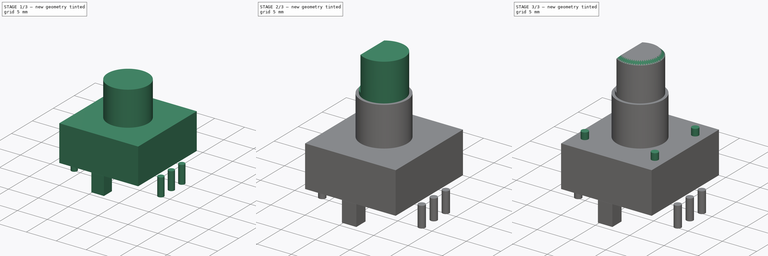
[diagram: build sequence overview — one tinted view per stage of 3, left to right]
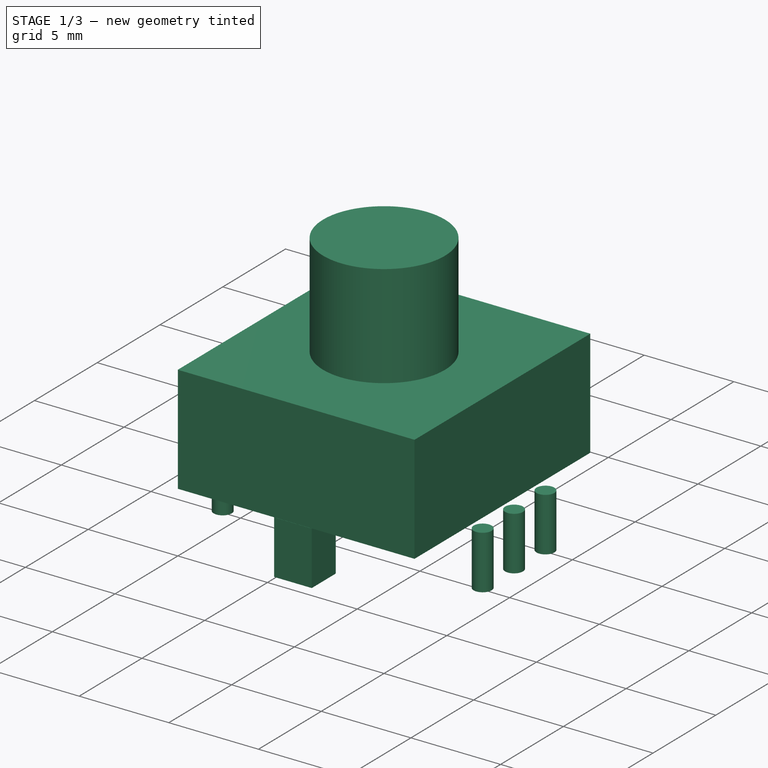
[diagram: stage 1 of 3 — iso view after this stage's code; geometry added in this stage tinted green]
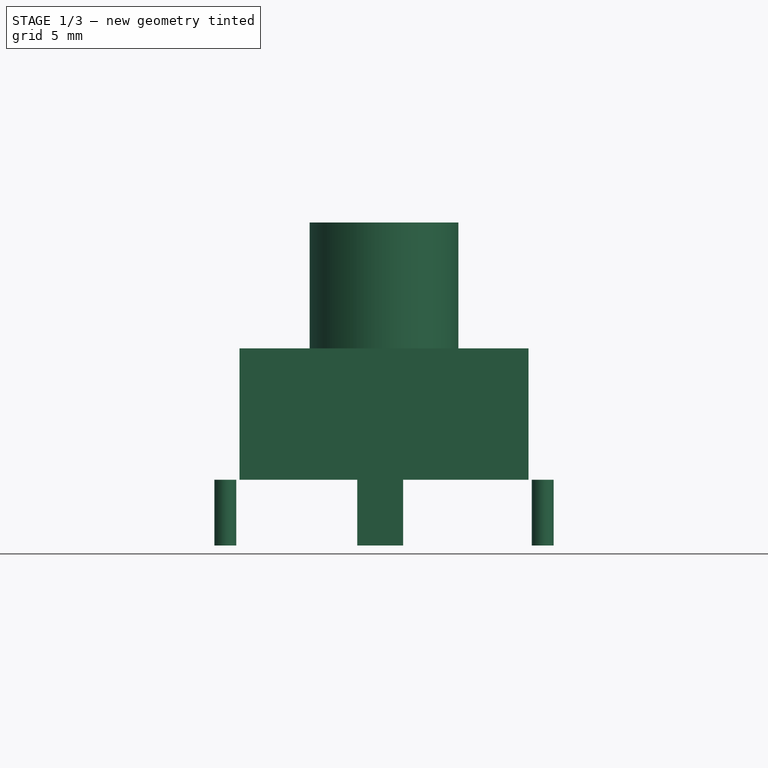
[diagram: stage 1 of 3 — front view after this stage's code; geometry added in this stage tinted green]
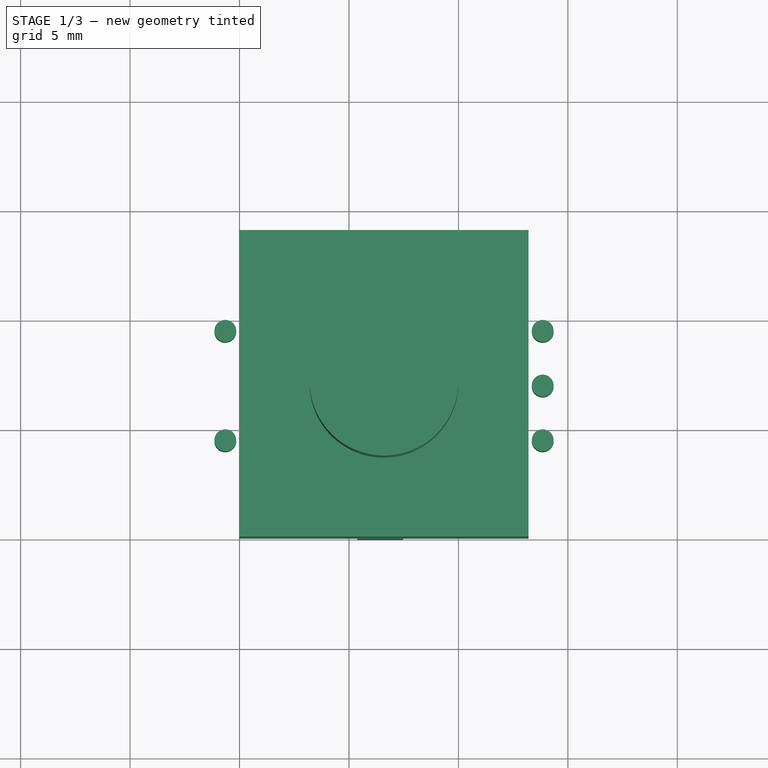
[diagram: stage 1 of 3 — top view after this stage's code; geometry added in this stage tinted green]
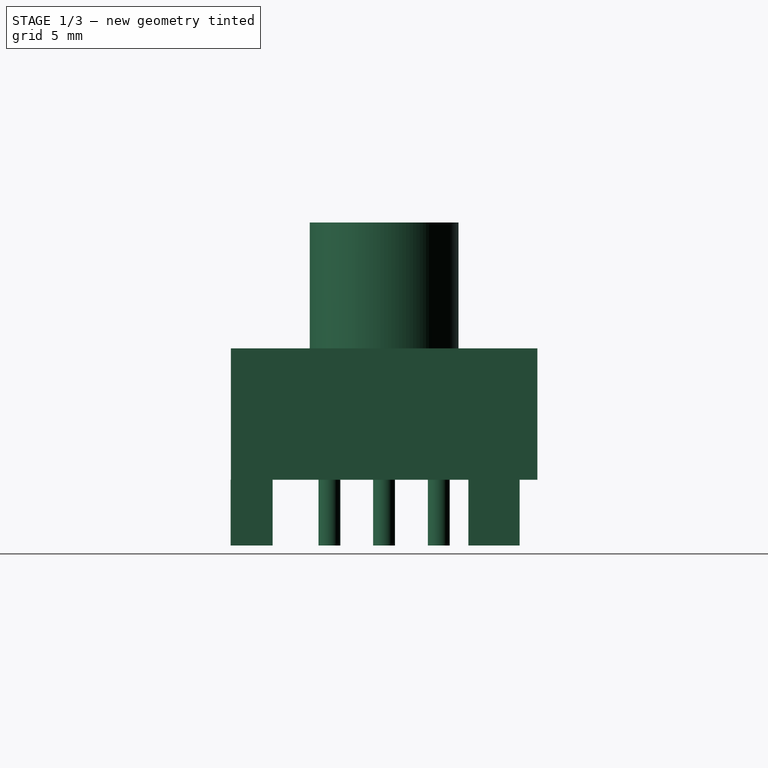
[diagram: stage 1 of 3 — right view after this stage's code; geometry added in this stage tinted green]
FCSTD DOCUMENT  (FreeCAD 0.16R6603 (Git))
Label: rotary_encoder
License: All rights reserved
LicenseURL: http://en.wikipedia.org/wiki/All_rights_reserved
objects: Sketcher::SketchObject×6, PartDesign::Pad×5, PartDesign::Pocket×1, PartDesign::Chamfer×1, Part::MultiFuse×1, App::MeasureDistance×1
note: 20 computed .brp shape members not serialized (recipe doc carries the construction recipe); baked Part::Feature solids carry a one-line shape summary decoded from their .brp

FEATURE [Sketcher::SketchObject] Sketch
  sketch-geometry (4):
    g0: LineSegment StartX=0 StartY=0 StartZ=0 EndX=13.2 EndY=0 EndZ=0
    g1: LineSegment StartX=13.2 StartY=0 StartZ=0 EndX=13.2 EndY=14 EndZ=0
    g2: LineSegment StartX=13.2 StartY=14 StartZ=0 EndX=0 EndY=14 EndZ=0
    g3: LineSegment StartX=0 StartY=14 StartZ=0 EndX=0 EndY=0 EndZ=0
  constraints (11):
    c: Coincident(g0,g1)
    c: Coincident(g1,g2)
    c: Coincident(g2,g3)
    c: Coincident(g3,g0)
    c: Horizontal(g0)
    c: Horizontal(g2)
    c: Vertical(g1)
    c: Vertical(g3)
    c: Coincident(g0,g-1)
    c: DistanceX(g2) = -13.2
    c: DistanceY(g1) = 14
FEATURE [PartDesign::Pad] Pad
  Length = 6
  Length2 = 100
  Sketch = -> Sketch
  Type = 0
FEATURE [Sketcher::SketchObject] Sketch001
  ExternalGeometry = -> [Pad]
  Placement = pos=(0,0,6) rot=(0,0,1;0rad)
  Support = -> Pad [Face6]
  sketch-geometry (1):
    g0: Circle CenterX=6.6 CenterY=7 CenterZ=0 NormalX=0 NormalY=0 NormalZ=1 Radius=3.4
  constraints (2):
    c: Symmetric(g-4,g-1,g0)
    c: Radius(g0) = 3.4
FEATURE [PartDesign::Pad] Pad001
  Length = 5.75
  Length2 = 100
  Sketch = -> Sketch001
  Type = 0
FEATURE [Sketcher::SketchObject] Sketch005
  Placement = pos=(-0.65,4.5,0) rot=(0,0,1;0rad)
  sketch-geometry (21):
    g0: LineSegment [constr] StartX=0 StartY=0 StartZ=0 EndX=7 EndY=0 EndZ=0
    g1: LineSegment [constr] StartX=7 StartY=0 StartZ=0 EndX=7 EndY=5 EndZ=0
    g2: LineSegment [constr] StartX=7 StartY=5 StartZ=0 EndX=0 EndY=5 EndZ=0
    g3: LineSegment [constr] StartX=0 StartY=5 StartZ=0 EndX=0 EndY=0 EndZ=0
    g4: LineSegment [constr] StartX=7 StartY=0 StartZ=0 EndX=14.5 EndY=0 EndZ=0
    g5: LineSegment [constr] StartX=14.5 StartY=0 StartZ=0 EndX=14.5 EndY=5 EndZ=0
    g6: LineSegment [constr] StartX=14.5 StartY=5 StartZ=0 EndX=7 EndY=5 EndZ=0
    g7: LineSegment StartX=7 StartY=5 StartZ=0 EndX=7 EndY=0 EndZ=0
    g8: Circle CenterX=0 CenterY=0 CenterZ=0 NormalX=0 NormalY=0 NormalZ=1 Radius=0.5
    g9: Circle CenterX=14.5 CenterY=0 CenterZ=0 NormalX=0 NormalY=0 NormalZ=1 Radius=0.5
    g10: Circle CenterX=14.5 CenterY=5 CenterZ=0 NormalX=0 NormalY=0 NormalZ=1 Radius=0.5
    g11: Circle CenterX=0 CenterY=5 CenterZ=0 NormalX=0 NormalY=0 NormalZ=1 Radius=0.5
    g12: Circle CenterX=14.5 CenterY=2.5 CenterZ=0 NormalX=0 NormalY=0 NormalZ=1 Radius=0.5
    g13: LineSegment StartX=6.02597 StartY=-2.59416 StartZ=0 EndX=8.12597 EndY=-2.59416 EndZ=0
    g14: LineSegment StartX=8.12597 StartY=-2.59416 StartZ=0 EndX=8.12597 EndY=-4.51057 EndZ=0
    g15: LineSegment StartX=8.12597 StartY=-4.51057 StartZ=0 EndX=6.02597 EndY=-4.51057 EndZ=0
    g16: LineSegment StartX=6.02597 StartY=-4.51057 StartZ=0 EndX=6.02597 EndY=-2.59416 EndZ=0
    g17: LineSegment StartX=6.06034 StartY=8.68943 StartZ=0 EndX=8.11515 EndY=8.68943 EndZ=0
    g18: LineSegment StartX=8.11515 StartY=8.68943 StartZ=0 EndX=8.11515 EndY=6.3505 EndZ=0
    g19: LineSegment StartX=8.11515 StartY=6.3505 StartZ=0 EndX=6.06034 EndY=6.3505 EndZ=0
    g20: LineSegment StartX=6.06034 StartY=6.3505 StartZ=0 EndX=6.06034 EndY=8.68943 EndZ=0
  constraints (50):
    c: Coincident(g0,g1)
    c: Coincident(g1,g2)
    c: Coincident(g2,g3)
    c: Coincident(g3,g0)
    c: Horizontal(g0)
    c: Horizontal(g2)
    c: Vertical(g1)
    c: Vertical(g3)
    c: Coincident(g0,g-1)
    c: DistanceX(g2) = -7
    c: Coincident(g4,g5)
    c: Coincident(g5,g6)
    c: Coincident(g6,g7)
    c: Coincident(g7,g4)
    c: Horizontal(g4)
    c: Horizontal(g6)
    c: Vertical(g5)
    c: Vertical(g7)
    c: Coincident(g4,g0)
    c: DistanceX(g6) = -7.5
    c: DistanceY(g3) = -5
    c: Coincident(g6,g1)
    c: Coincident(g8,g-1)
    c: Radius(g8) = 0.5
    c: Coincident(g9,g4)
    c: Radius(g9) = 0.5
    c: Coincident(g10,g5)
    c: Radius(g10) = 0.5
    c: Coincident(g11,g2)
    c: Radius(g11) = 0.5
    c: Symmetric(g5,g4,g12)
    c: Radius(g12) = 0.5
    c: Coincident(g13,g14)
    c: Coincident(g14,g15)
    c: Coincident(g15,g16)
    c: Coincident(g16,g13)
    c: Horizontal(g13)
    c: Horizontal(g15)
    c: Vertical(g14)
    c: Vertical(g16)
    c: DistanceX(g13) = 2.1
    c: Coincident(g17,g18)
    c: Coincident(g18,g19)
    c: Coincident(g19,g20)
    c: Coincident(g20,g17)
    c: Horizontal(g17)
    c: Horizontal(g19)
    c: Vertical(g18)
    c: Vertical(g20)
    c: DistanceY(g17,g15) = -13.2
FEATURE [PartDesign::Pad] Pad004
  Length = 3
  Length2 = 100
  Placement = pos=(-0.65,4.5,0) rot=(0,0,1;0rad)
  Reversed = true
  Sketch = -> Sketch005
  Type = 0
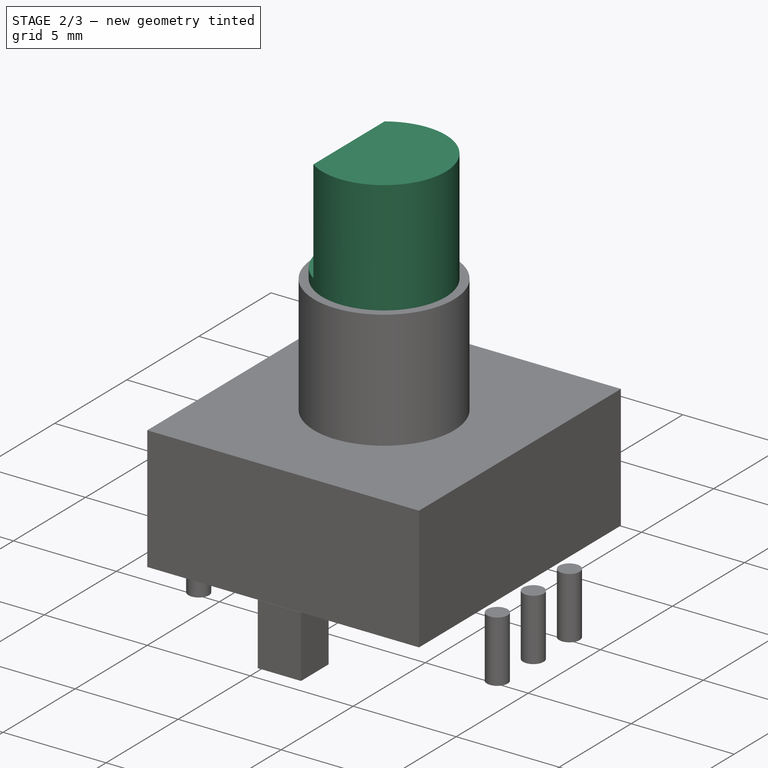
[diagram: stage 2 of 3 — iso view after this stage's code; geometry added in this stage tinted green]
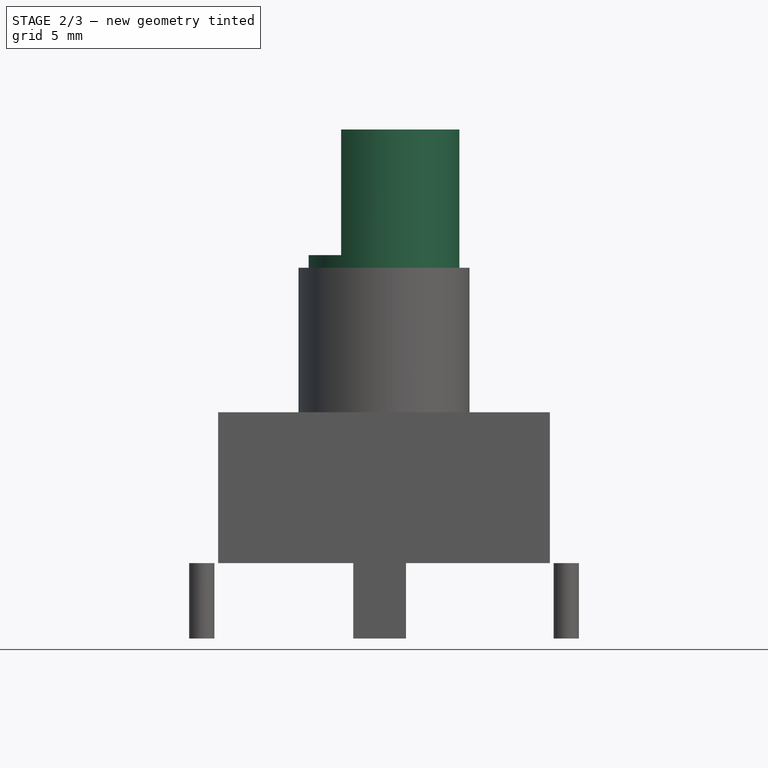
[diagram: stage 2 of 3 — front view after this stage's code; geometry added in this stage tinted green]
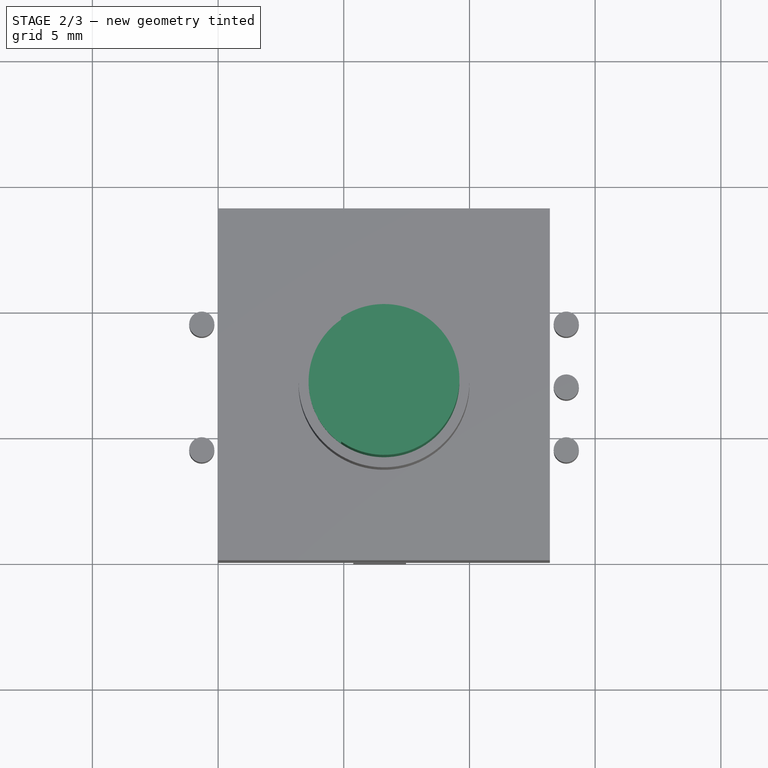
[diagram: stage 2 of 3 — top view after this stage's code; geometry added in this stage tinted green]
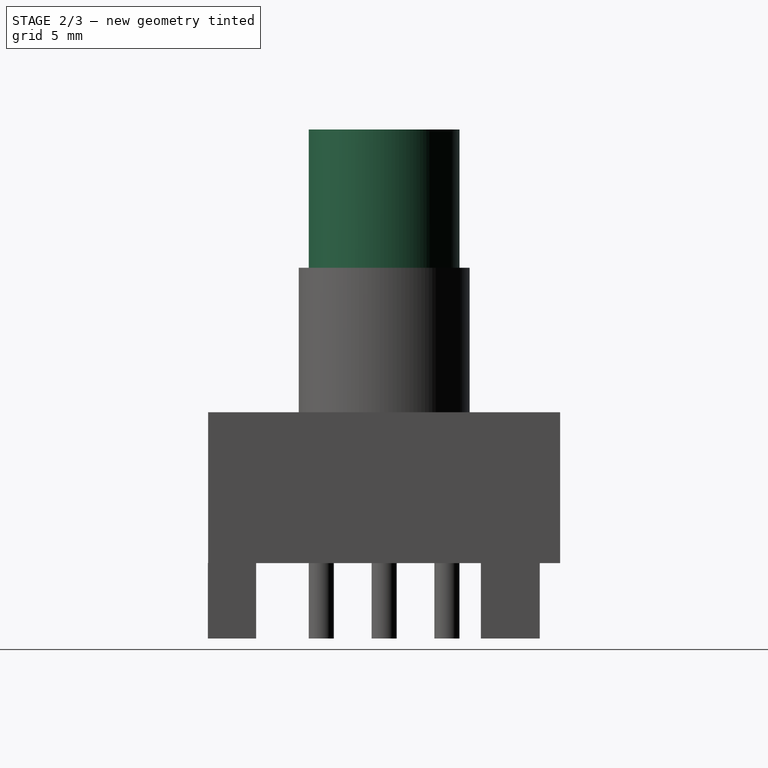
[diagram: stage 2 of 3 — right view after this stage's code; geometry added in this stage tinted green]
FEATURE [Sketcher::SketchObject] Sketch002
  ExternalGeometry = -> [Pad001]
  Placement = pos=(0,0,11.75) rot=(0,0,1;0rad)
  Support = -> Pad001 [Face8]
  sketch-geometry (1):
    g0: Circle CenterX=6.6 CenterY=7 CenterZ=0 NormalX=0 NormalY=0 NormalZ=1 Radius=3
  constraints (2):
    c: Coincident(g0,g-3)
    c: Radius(g0) = 3
FEATURE [PartDesign::Pad] Pad002
  Length = 5.5
  Length2 = 100
  Sketch = -> Sketch002
  Type = 0
FEATURE [Sketcher::SketchObject] Sketch003
  ExternalGeometry = -> [Pad002]
  Placement = pos=(0,0,17.25) rot=(0,0,1;0rad)
  Support = -> Pad002 [Face10]
  sketch-geometry (2):
    g0: LineSegment StartX=4.8944 StartY=9.46798 StartZ=0 EndX=4.8944 EndY=4.53202 EndZ=0
    g1: ArcOfCircle CenterX=6.6 CenterY=7 CenterZ=0 NormalX=0 NormalY=0 NormalZ=1 Radius=3 StartAngle=2.17552 EndAngle=4.10767
  constraints (6):
    c: PointOnObject(g0,g-3)
    c: PointOnObject(g0,g-3)
    c: Vertical(g0)
    c: Coincident(g1,g0)
    c: Coincident(g1,g0)
    c: Tangent(g1,g-3)
FEATURE [PartDesign::Pocket] Pocket
  Length = 5
  Sketch = -> Sketch003
  Type = 0
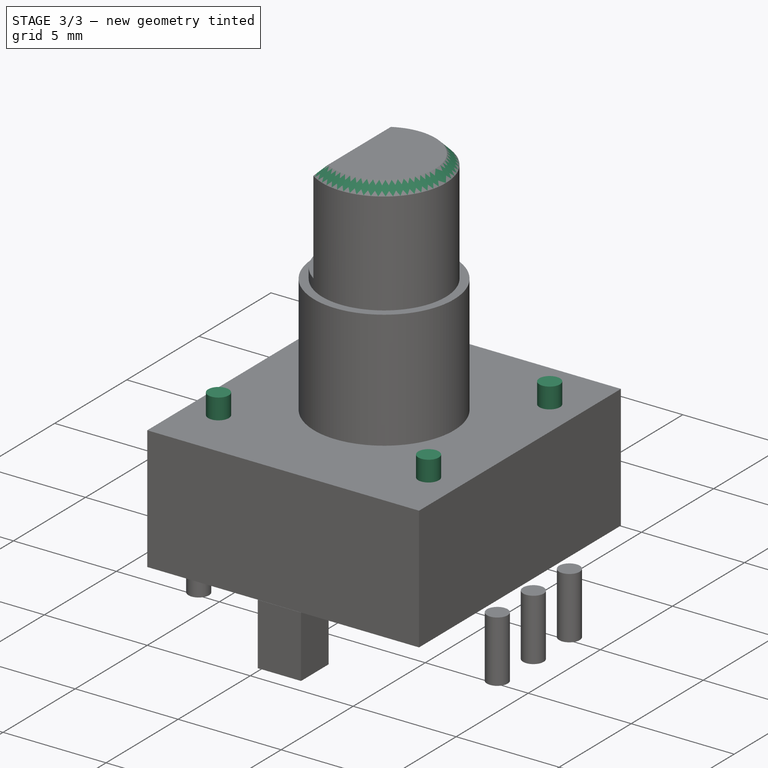
[diagram: stage 3 of 3 — iso view after this stage's code; geometry added in this stage tinted green]
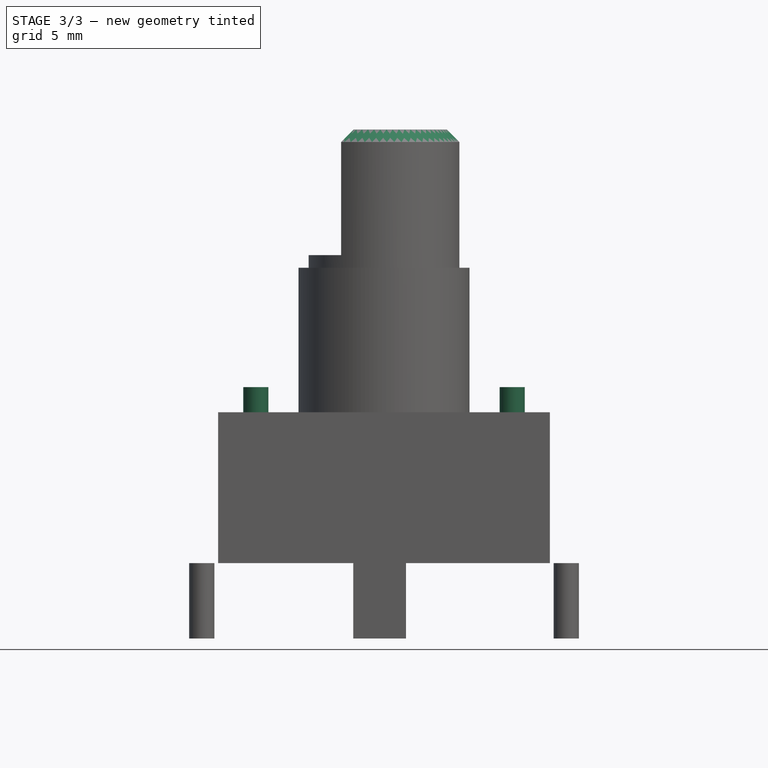
[diagram: stage 3 of 3 — front view after this stage's code; geometry added in this stage tinted green]
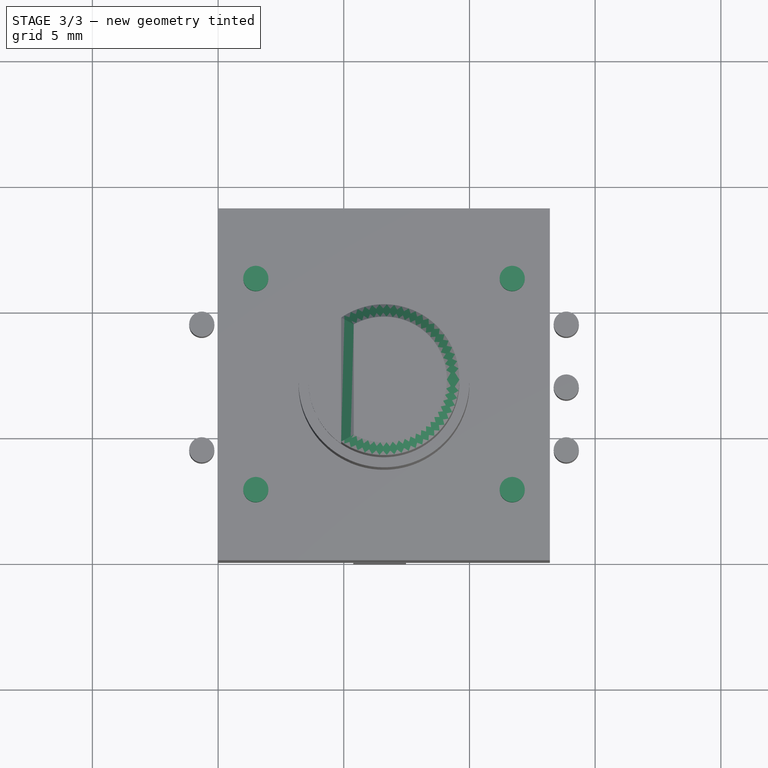
[diagram: stage 3 of 3 — top view after this stage's code; geometry added in this stage tinted green]
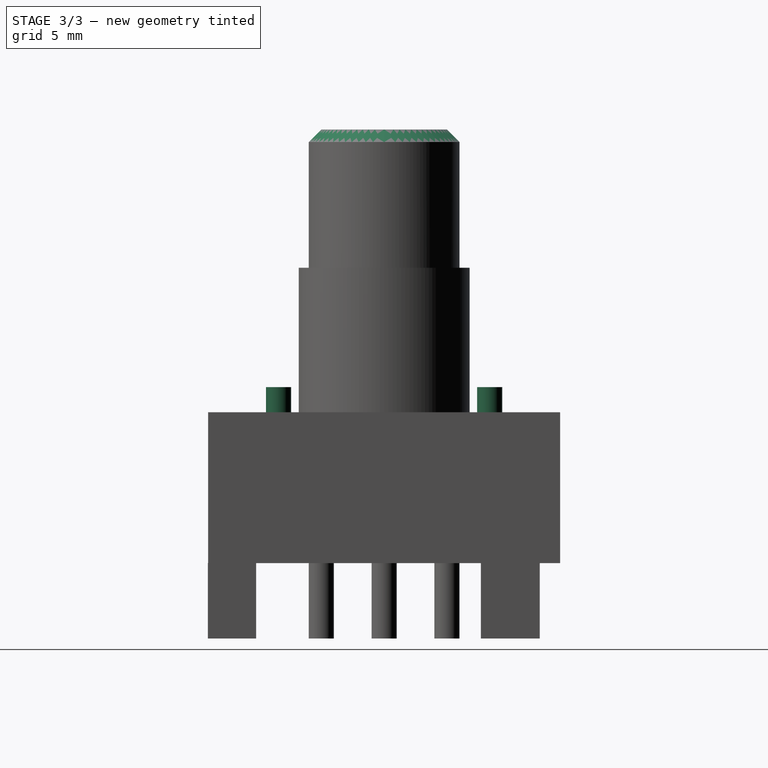
[diagram: stage 3 of 3 — right view after this stage's code; geometry added in this stage tinted green]
FEATURE [PartDesign::Chamfer] Chamfer
  Base = -> Pocket [Edge22,Edge18,Edge23]
  Size = 0.5
FEATURE [Sketcher::SketchObject] Sketch004
  ExternalGeometry = -> [Chamfer]
  Placement = pos=(0,0,6) rot=(0,0,1;0rad)
  Support = -> Chamfer [Face10]
  sketch-geometry (14):
    g0: Circle CenterX=1.5 CenterY=11.2 CenterZ=0 NormalX=0 NormalY=0 NormalZ=1 Radius=0.5
    g1: Circle CenterX=1.5 CenterY=2.8 CenterZ=0 NormalX=0 NormalY=0 NormalZ=1 Radius=0.5
    g2: Circle CenterX=11.7 CenterY=11.2 CenterZ=0 NormalX=0 NormalY=0 NormalZ=1 Radius=0.5
    g3: Circle CenterX=11.7 CenterY=2.8 CenterZ=0 NormalX=0 NormalY=0 NormalZ=1 Radius=0.5
    g4: GeomPoint [constr] X=0 Y=7 Z=0
    g5: GeomPoint [constr] X=1.5 Y=7 Z=0
    g6: LineSegment [constr] StartX=0 StartY=7 StartZ=0 EndX=1.5 EndY=7 EndZ=0
    g7: LineSegment [constr] StartX=1.5 StartY=11.2 StartZ=0 EndX=11.7 EndY=11.2 EndZ=0
    g8: LineSegment [constr] StartX=1.5 StartY=2.8 StartZ=0 EndX=11.7 EndY=2.8 EndZ=0
    g9: GeomPoint [constr] X=6.6 Y=14 Z=0
    g10: GeomPoint [constr] X=6.6 Y=11.2 Z=0
    g11: LineSegment [constr] StartX=6.6 StartY=11.2 StartZ=0 EndX=6.6 EndY=14 EndZ=0
    g12: GeomPoint [constr] X=6.6 Y=2.8 Z=0
    g13: LineSegment [constr] StartX=6.6 StartY=2.8 StartZ=0 EndX=6.6 EndY=11.2 EndZ=0
  constraints (28):
    c: DistanceY(g0,g1) = -8.4
    c: PointOnObject(g4,g-3)
    c: Symmetric(g-3,g-1,g4)
    c: Symmetric(g0,g1,g5)
    c: Coincident(g6,g4)
    c: Coincident(g6,g5)
    c: Horizontal(g6)
    c: Coincident(g7,g0)
    c: Coincident(g7,g2)
    c: Coincident(g8,g1)
    c: Coincident(g8,g3)
    c: Horizontal(g8)
    c: Horizontal(g7)
    c: DistanceX(g0,g2) = 10.2
    c: DistanceX(g8) = 10.2
    c: Symmetric(g-3,g-4,g9)
    c: Symmetric(g0,g2,g10)
    c: Coincident(g11,g10)
    c: Coincident(g11,g9)
    c: Vertical(g11)
    c: Symmetric(g1,g3,g12)
    c: Coincident(g13,g12)
    c: Coincident(g13,g10)
    c: Vertical(g13)
    c: Radius(g0) = 0.5
    c: Radius(g2) = 0.5
    c: Radius(g3) = 0.5
    c: Radius(g1) = 0.5
FEATURE [PartDesign::Pad] Pad003
  Length = 1
  Length2 = 100
  Sketch = -> Sketch004
  Type = 0
FEATURE [Part::MultiFuse] Fusion
  Shapes = -> [Pad003,Pad004]
FEATURE [App::MeasureDistance] Distance  label="Distance: 20.9504 mm"
  Distance = 20.9504
  P1 = (9.01646,6.35911,17.25)
  P2 = (14.35,7,-3)
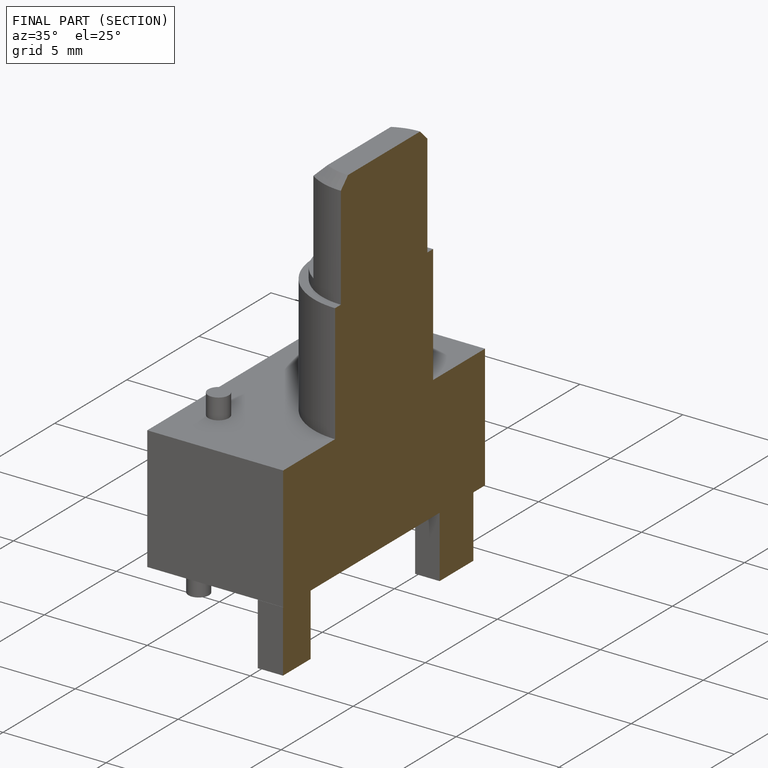
[diagram: finished part — half-section view (interior)]
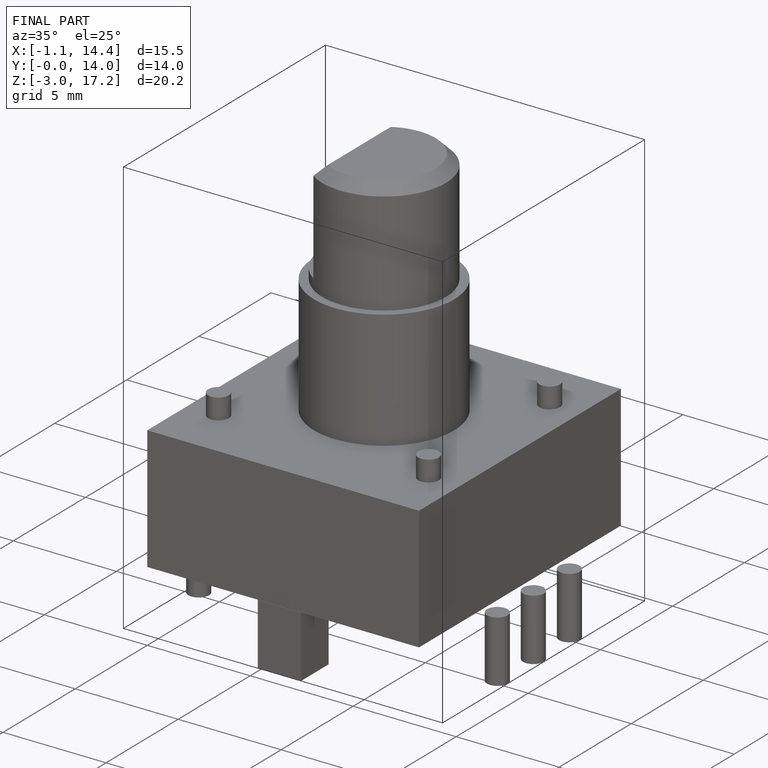
[diagram: finished part — iso view with bounding-box wireframe]
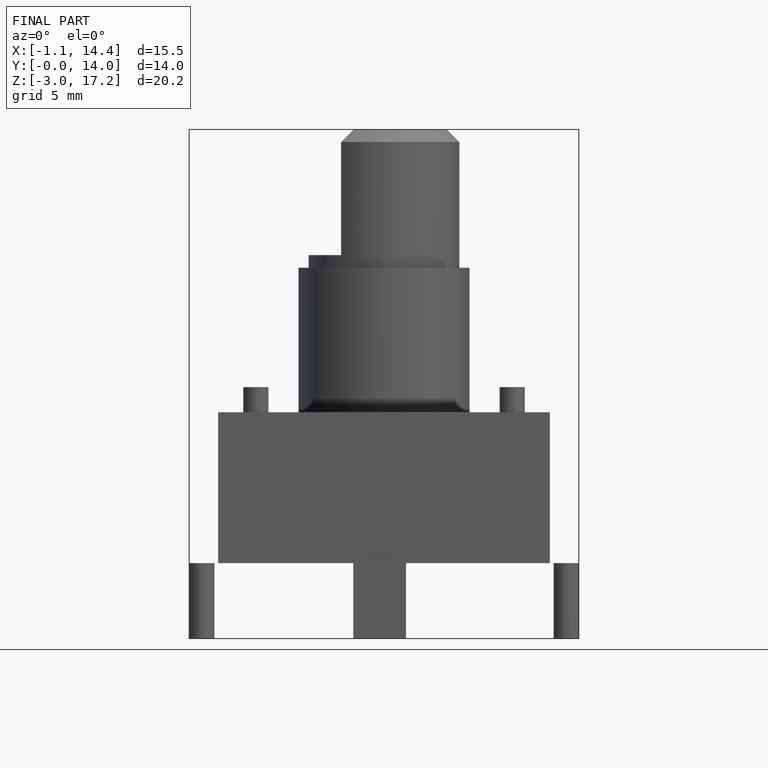
[diagram: finished part — front view with bounding-box wireframe]
